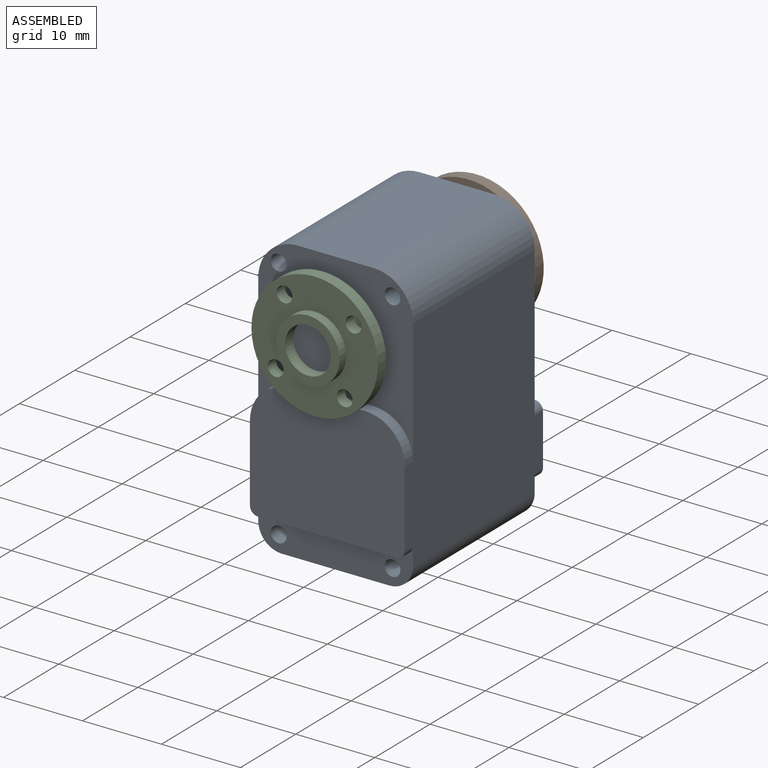
[diagram: assembled view]
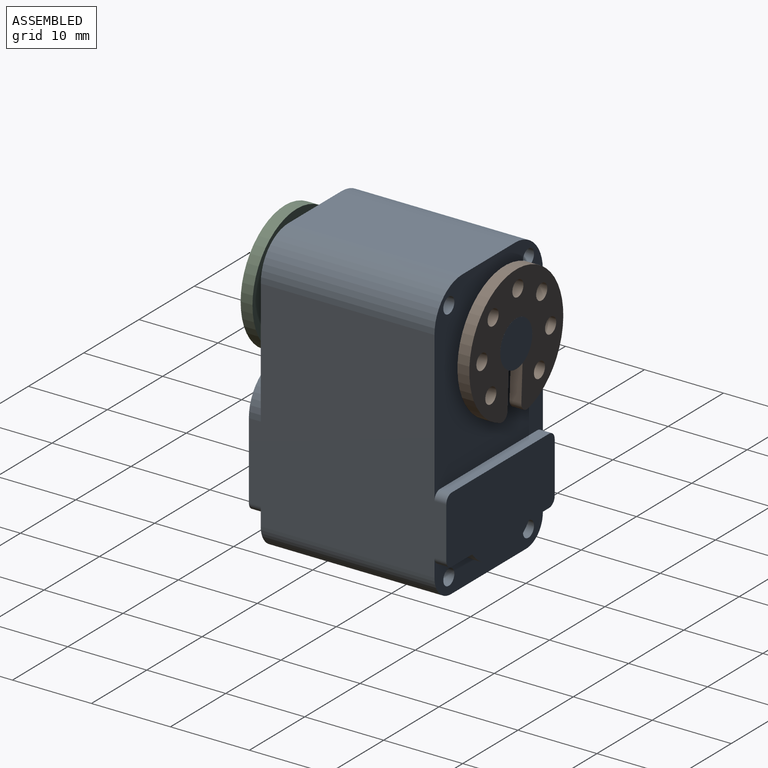
[diagram: assembled view, second angle]
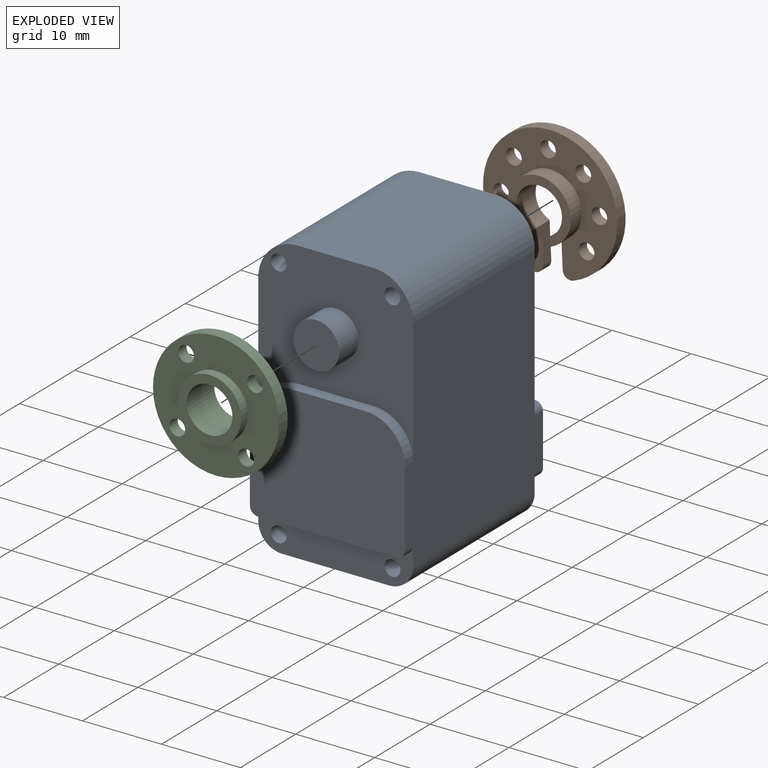
[diagram: exploded view]
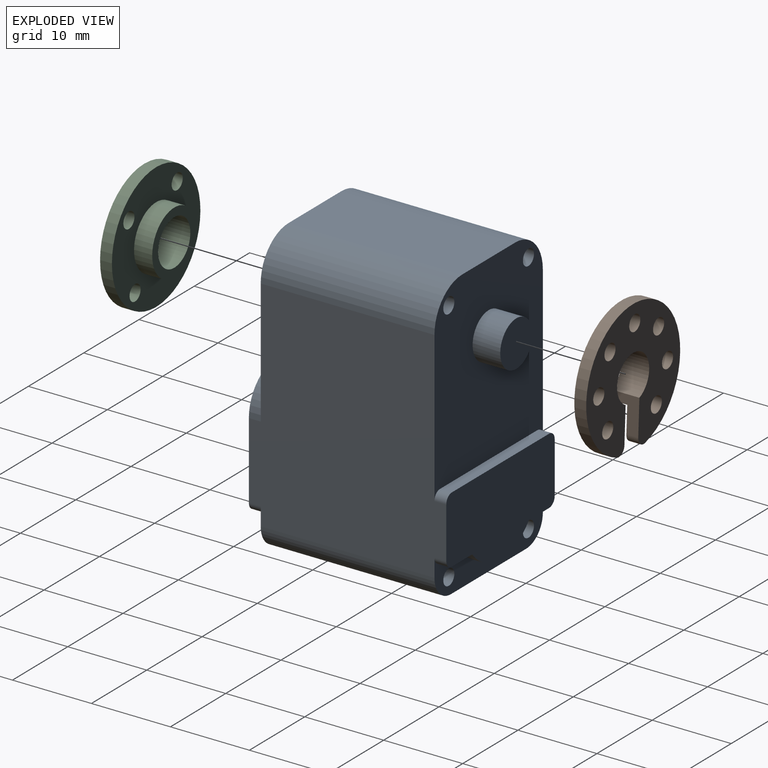
[diagram: exploded view, second angle]
ASSEMBLY  parts=3 mates=2
PART A: 36 faces, bbox 19.6x29x35.8 mm
  f0: plane 19.6x5.3mm, normal (0,1,0), area 56.7mm2, adj f2,f3,f4,f16,f17,f18,f21,f22
  f1: plane 19.6x5.3mm, normal (0,-1,0), area 74.6mm2, adj f2,f3,f4,f10,f24,f25,f26,f28
  f2: plane 27.8x25mm, normal (-1,0,0), area 635.9mm2, adj f0,f1,f6,f7,f9,f12,f19,f22
  f3: plane 22x13.6mm, normal (0,0,-1), area 299.2mm2, adj f0,f1,f34,f35
  f4: plane 27.8x25mm, normal (1,0,0), area 635.9mm2, adj f0,f1,f6,f7,f11,f12,f19,f20
  f5: plane 22x9.6mm, normal (0,0,1), area 211.2mm2, adj f6,f7,f32,f33
  f6: plane 20.8x19.6mm, normal (0,-1,0), area 277mm2, adj f2,f4,f5,f8,f9,f11,f13,f27
  f7: plane 24x19.6mm, normal (0,1,0), area 407.8mm2, adj f2,f4,f5,f15,f20,f23,f27,f29
  f8: plane 9.6x1.5mm, normal (0,0,1), area 14.4mm2, adj f6,f9,f11,f12
  f9: cylinder r=5mm len=5mm, axis (0,1,0), area 11.8mm2, adj f2,f6,f8,f12
  f10: plane 17.6x1.5mm, normal (0,0,-1), area 26.4mm2, adj f1,f12,f24,f25
  f11: cylinder r=5mm len=5mm, axis (0,1,0), area 11.8mm2, adj f4,f6,f8,f12
  f12: plane 19.6x15.7mm, normal (0,-1,0), area 296.6mm2, adj f2,f4,f8,f9,f10,f11,f24,f25
  f13: cylinder r=2.9mm len=5.8mm, axis (0,1,0), area 63.8mm2, adj f6,f14
  f14: plane 5.8x5.8mm, normal (0,-1,0), area 26.4mm2, adj f13
  f15: plane 17.6x1.5mm, normal (0,0,1), area 26.4mm2, adj f7,f19,f20,f23
  f16: plane 3.68x1.5mm, normal (0,0,-1), area 5.5mm2, adj f0,f17,f19,f21
  f17: cylinder r=6.5mm len=10.25mm, axis (0,-1,0), area 17.7mm2, adj f0,f16,f18,f19
  f18: plane 3.68x1.5mm, normal (0,0,-1), area 5.5mm2, adj f0,f17,f19,f22
  f19: plane 19.6x11mm, normal (0,1,0), area 183.6mm2, adj f2,f4,f15,f16,f17,f18,f20,f21
  f20: cylinder r=1mm len=1.5mm, axis (0,1,0), area 2.4mm2, adj f4,f7,f15,f19
  f21: cylinder r=1mm len=1.5mm, axis (0,-1,0), area 2.4mm2, adj f0,f4,f16,f19
  f22: cylinder r=1mm len=1.5mm, axis (0,1,0), area 2.4mm2, adj f0,f2,f18,f19
  f23: cylinder r=1mm len=1.5mm, axis (0,-1,0), area 2.4mm2, adj f2,f7,f15,f19
  f24: cylinder r=1mm len=1.5mm, axis (0,-1,0), area 2.4mm2, adj f1,f2,f10,f12
  f25: cylinder r=1mm len=1.5mm, axis (0,1,0), area 2.4mm2, adj f1,f4,f10,f12
  f26: cylinder r=1mm len=22mm, axis (0,-1,0), area 138.2mm2, adj f0,f1
  f27: cylinder r=1mm len=22mm, axis (0,-1,0), area 138.2mm2, adj f6,f7
  f28: cylinder r=1mm len=22mm, axis (0,-1,0), area 138.2mm2, adj f0,f1
  f29: cylinder r=1mm len=22mm, axis (0,-1,0), area 138.2mm2, adj f6,f7
  f30: cylinder r=2.9mm len=5.8mm, axis (0,-1,0), area 63.8mm2, adj f7,f31
  f31: plane 5.8x5.8mm, normal (0,1,0), area 26.4mm2, adj f30
  f32: cylinder r=5mm len=22mm, axis (0,-1,0), area 172.8mm2, adj f4,f5,f6,f7
  f33: cylinder r=5mm len=22mm, axis (0,1,0), area 172.8mm2, adj f2,f5,f6,f7
  f34: cylinder r=3mm len=22mm, axis (0,-1,0), area 103.7mm2, adj f0,f1,f2,f3
  f35: cylinder r=3mm len=22mm, axis (0,1,0), area 103.7mm2, adj f0,f1,f3,f4
PART B: 17 faces, bbox 17x3.5x16.7 mm
  f0: cylinder r=8.5mm len=17mm, axis (0,1,0), area 72.3mm2, adj f1,f2,f15,f16
  f1: plane 17x16.65mm, normal (0,-1,0), area 163.7mm2, adj f0,f5,f6,f7,f8,f9,f10,f11
  f2: plane 17x16.65mm, normal (0,1,0), area 142.6mm2, adj f0,f3,f6,f7,f8,f9,f10,f11
  f3: cylinder r=4mm len=8mm, axis (0,-1,0), area 45.2mm2, adj f2,f4,f13,f14
  f4: plane 8x7.8mm, normal (0,1,0), area 21mm2, adj f3,f5,f13,f14
  f5: cylinder r=2.9mm len=5.8mm, axis (0,1,0), area 54.7mm2, adj f1,f4,f13,f14
  f6: cylinder r=1mm len=2mm, axis (0,1,0), area 9.4mm2, adj f1,f2
  f7: cylinder r=1mm len=2mm, axis (0,1,0), area 9.4mm2, adj f1,f2
  f8: cylinder r=1mm len=2mm, axis (0,1,0), area 9.4mm2, adj f1,f2
  f9: cylinder r=1mm len=2mm, axis (0,1,0), area 9.4mm2, adj f1,f2
  f10: cylinder r=1mm len=2mm, axis (0,1,0), area 9.4mm2, adj f1,f2
  f11: cylinder r=1mm len=2mm, axis (0,1,0), area 9.4mm2, adj f1,f2
  f12: cylinder r=1mm len=2mm, axis (0,1,0), area 9.4mm2, adj f1,f2
  f13: plane 4.54x3.5mm, normal (1,0,0), area 9.2mm2, adj f1,f2,f3,f4,f5,f15
  f14: plane 4.54x3.5mm, normal (-1,0,0), area 9.2mm2, adj f1,f2,f3,f4,f5,f16
  f15: cylinder r=1mm len=1.5mm, axis (0,1,0), area 2.8mm2, adj f0,f1,f2,f13
  f16: cylinder r=1mm len=1.5mm, axis (0,1,0), area 2.8mm2, adj f0,f1,f2,f14
PART C: 12 faces, bbox 16x5x16 mm
  f0: cylinder r=8mm len=16mm, axis (0,1,0), area 75.4mm2, adj f1,f2
  f1: plane 16x16mm, normal (0,-1,0), area 138.2mm2, adj f0,f3,f4,f5,f6,f7
  f2: plane 16x16mm, normal (0,1,0), area 138.2mm2, adj f0,f3,f4,f5,f6,f9
  f3: cylinder r=1mm len=2mm, axis (0,-1,0), area 9.4mm2, adj f1,f2
  f4: cylinder r=1mm len=2mm, axis (0,-1,0), area 9.4mm2, adj f1,f2
  f5: cylinder r=1mm len=2mm, axis (0,-1,0), area 9.4mm2, adj f1,f2
  f6: cylinder r=1mm len=2mm, axis (0,-1,0), area 9.4mm2, adj f1,f2
  f7: cylinder r=4mm len=8mm, axis (0,1,0), area 30.2mm2, adj f1,f8
  f8: plane 8x8mm, normal (0,-1,0), area 23.8mm2, adj f7,f11
  f9: cylinder r=4mm len=8mm, axis (0,-1,0), area 57.8mm2, adj f2,f10
  f10: plane 8x8mm, normal (0,1,0), area 23.8mm2, adj f9,f11
  f11: cylinder r=2.9mm len=5.8mm, axis (0,1,0), area 91.1mm2, adj f8,f10
PLACE A rot(axis=(0,0.05,-1),0deg) t=(11.37,36.1,-25.45)mm fixed
PLACE B rot(axis=(-0.02,0,1),180deg) t=(21.17,38.1,1.55)mm
PLACE C rot(axis=(0,-1,0),82.7deg) t=(21.17,11.8,1.55)mm
MATE revolute A.f13 <-> B.f0  axis (0,-1,0) through (21.17,36.1,1.55)mm
MATE revolute C.f0 <-> A.f13  axis (0,1,0) through (21.17,14.1,1.55)mm
